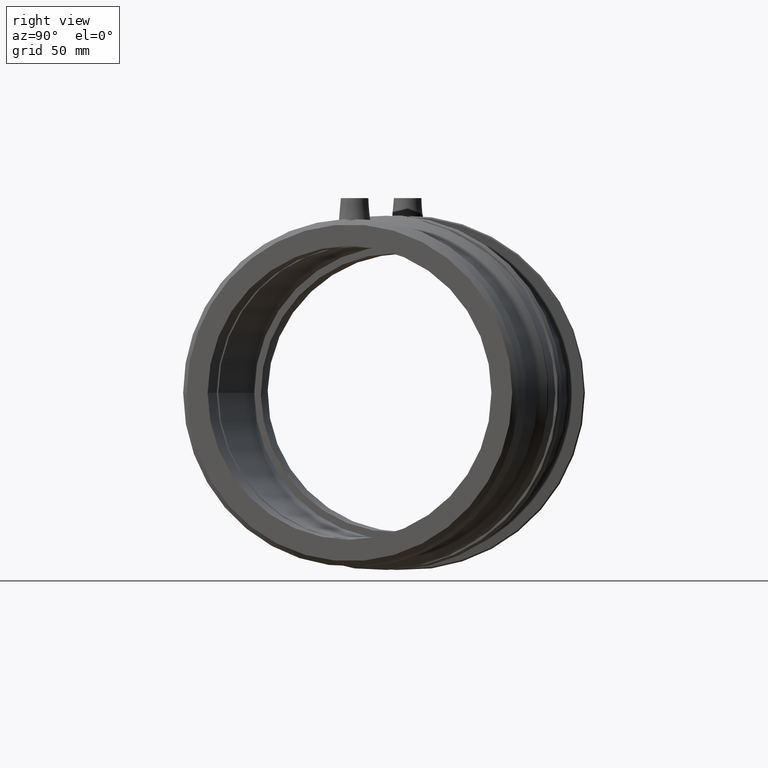
[diagram: clean part render]
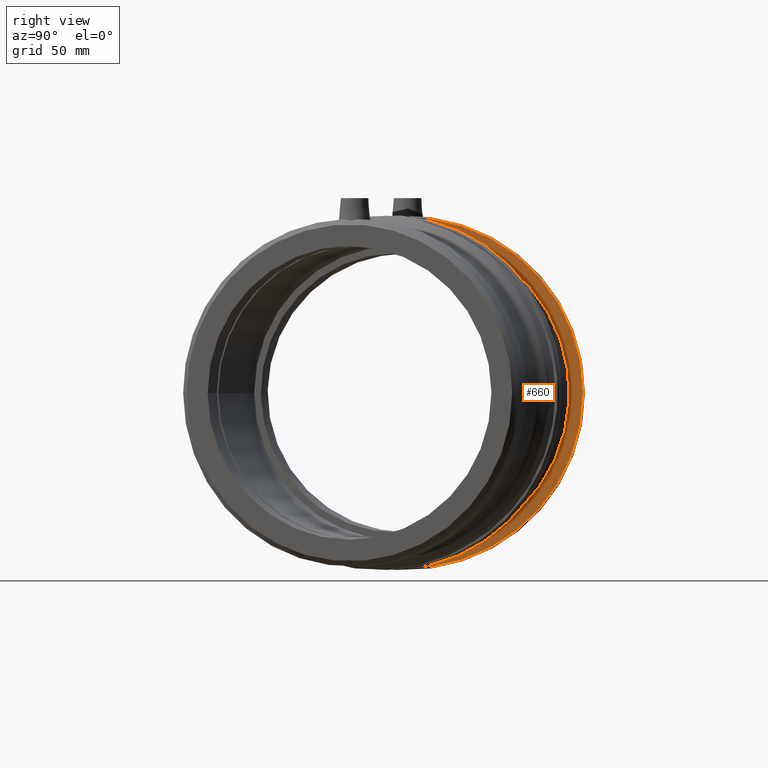
[diagram: same view with one face highlighted and labeled with its STEP entity id]
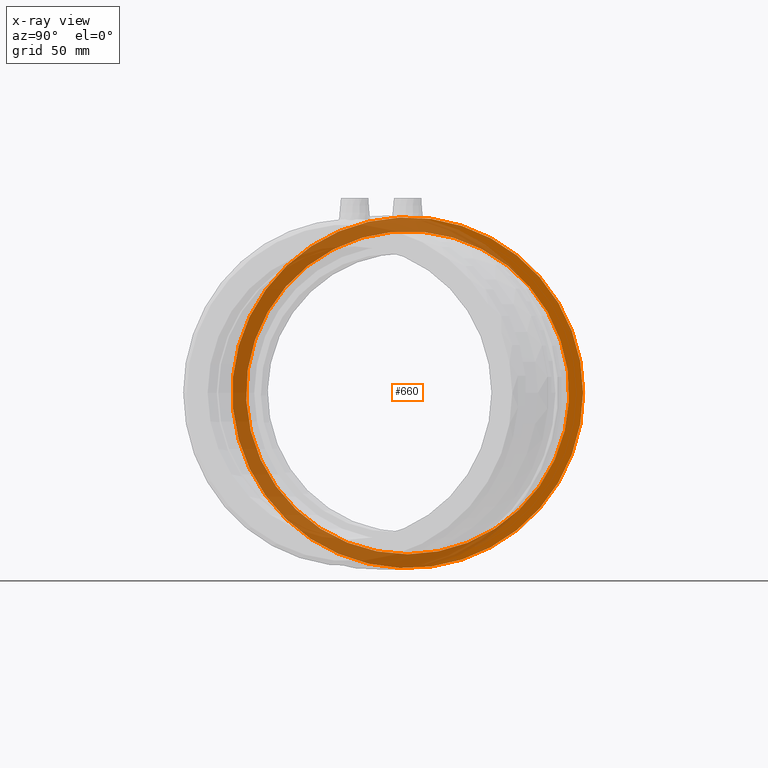
[diagram: x-ray of the same camera — body ghosted, the highlighted face saturated]
A machine part, right view. The second image highlights one B-rep face of the part: STEP entity #660.
The next image is the same camera in x-ray: the body ghosted, the highlighted face saturated — about 63% of this face is hidden behind the body in this view.
In plain terms, the highlighted planar face has unit normal (1, 0, 0).
Its self-contained STEP definition (entity closure, byte-faithful):
#64=PLANE('',#761);
#107=FACE_BOUND('',#261,.T.);
#164=FACE_OUTER_BOUND('',#260,.T.);
#260=EDGE_LOOP('',(#565));
#261=EDGE_LOOP('',(#566));
#294=CIRCLE('',#688,88.);
#328=CIRCLE('',#758,95.535);
#348=VERTEX_POINT('',#1288);
#389=VERTEX_POINT('',#1553);
#408=EDGE_CURVE('',#348,#348,#294,.T.);
#454=EDGE_CURVE('',#389,#389,#328,.T.);
#565=ORIENTED_EDGE('',*,*,#454,.F.);
#566=ORIENTED_EDGE('',*,*,#408,.T.);
#660=ADVANCED_FACE('',(#164,#107),#64,.T.);
#688=AXIS2_PLACEMENT_3D('',#1289,#811,#812);
#758=AXIS2_PLACEMENT_3D('',#1554,#951,#952);
#761=AXIS2_PLACEMENT_3D('',#1558,#957,#958);
#811=DIRECTION('center_axis',(-1.,0.,0.));
#812=DIRECTION('ref_axis',(0.,1.,0.));
#951=DIRECTION('center_axis',(-1.,0.,0.));
#952=DIRECTION('ref_axis',(0.,-1.,1.83697019872103E-16));
#957=DIRECTION('center_axis',(1.,0.,0.));
#958=DIRECTION('ref_axis',(0.,0.,-1.));
#1288=CARTESIAN_POINT('',(-34.1461636691924,1.07768918324967E-14,-88.));
#1289=CARTESIAN_POINT('Origin',(-34.1461636691924,0.,0.));
#1553=CARTESIAN_POINT('',(-34.1461636691924,95.535,-2.92491579891356E-14));
#1554=CARTESIAN_POINT('Origin',(-34.1461636691924,0.,0.));
#1558=CARTESIAN_POINT('Origin',(-34.1461636691924,76.,0.));